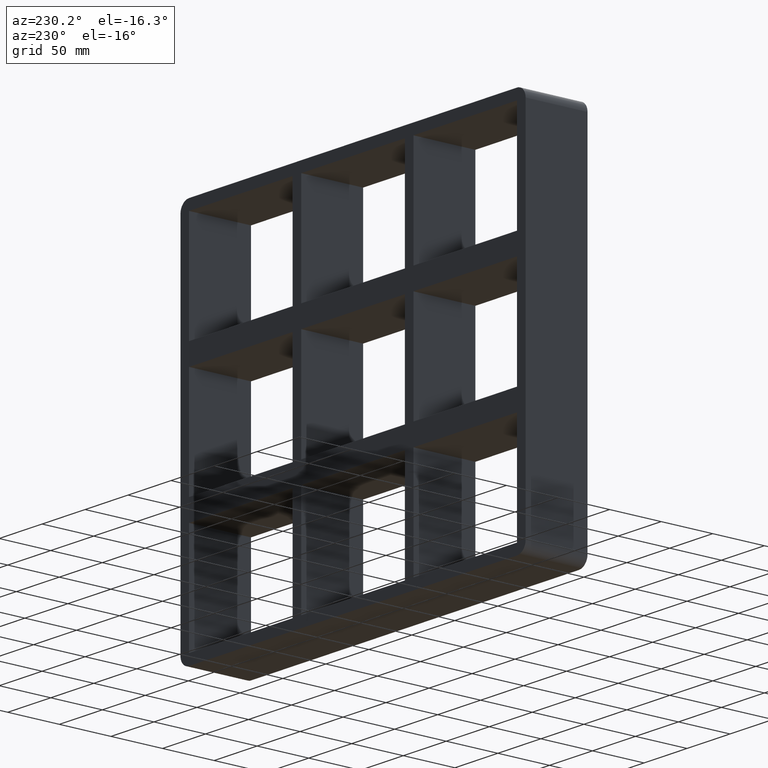
[diagram: clean part render]
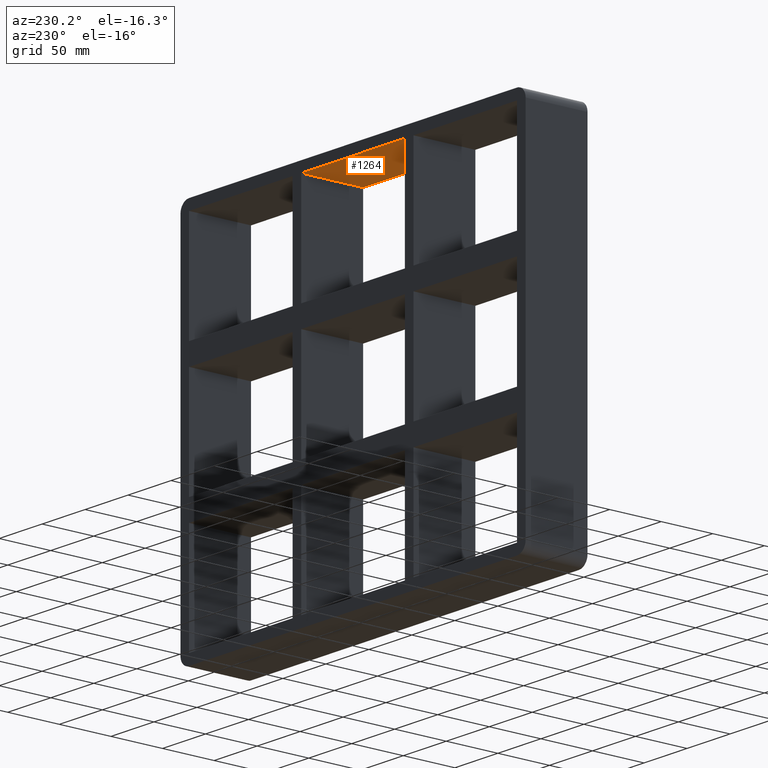
[diagram: same view with one face highlighted and labeled with its STEP entity id]
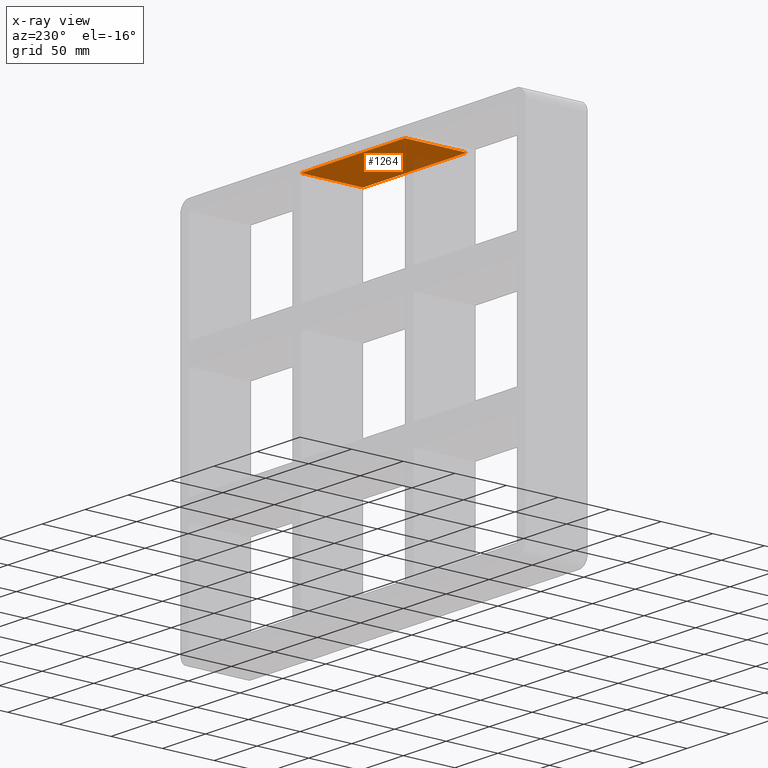
[diagram: x-ray of the same camera — body ghosted, the highlighted face saturated]
A machine part, auxiliary view. The second image highlights one B-rep face of the part: STEP entity #1264.
The next image is the same camera in x-ray: the body ghosted, the highlighted face saturated — about 9% of this face is hidden behind the body in this view.
In plain terms, the highlighted planar face has unit normal (0, 0, 1).
Its self-contained STEP definition (entity closure, byte-faithful):
#407=CARTESIAN_POINT('',(60.249999999998579,-3.0,171.50000000000003));
#408=VERTEX_POINT('',#407);
#415=CARTESIAN_POINT('',(60.249999999998579,57.0,171.50000000000003));
#416=VERTEX_POINT('',#415);
#417=CARTESIAN_POINT('',(60.249999999998593,57.000000000000007,171.50000000000003));
#418=DIRECTION('',(0.0,-1.0,0.0));
#419=VECTOR('',#418,60.000000000000007);
#420=LINE('',#417,#419);
#421=EDGE_CURVE('',#416,#408,#420,.T.);
#531=CARTESIAN_POINT('',(-60.249999999996362,57.0,171.50000000000003));
#532=VERTEX_POINT('',#531);
#539=CARTESIAN_POINT('',(-60.249999999996362,-3.0,171.50000000000003));
#540=VERTEX_POINT('',#539);
#541=CARTESIAN_POINT('',(-60.249999999996362,-3.0,171.50000000000003));
#542=DIRECTION('',(0.0,1.0,0.0));
#543=VECTOR('',#542,60.000000000000007);
#544=LINE('',#541,#543);
#545=EDGE_CURVE('',#540,#532,#544,.T.);
#661=CARTESIAN_POINT('',(60.249999999998579,57.0,171.50000000000003));
#662=DIRECTION('',(-1.0,0.0,0.0));
#663=VECTOR('',#662,120.49999999999494);
#664=LINE('',#661,#663);
#665=EDGE_CURVE('',#416,#532,#664,.T.);
#1103=CARTESIAN_POINT('',(-60.249999999996369,-3.0,171.50000000000003));
#1104=DIRECTION('',(1.0,0.0,0.0));
#1105=VECTOR('',#1104,120.49999999999494);
#1106=LINE('',#1103,#1105);
#1107=EDGE_CURVE('',#540,#408,#1106,.T.);
#1253=CARTESIAN_POINT('',(-190.75000000000006,0.0,171.50000000000003));
#1254=DIRECTION('',(0.0,0.0,1.0));
#1255=DIRECTION('',(1.0,0.0,0.0));
#1256=AXIS2_PLACEMENT_3D('',#1253,#1254,#1255);
#1257=PLANE('',#1256);
#1258=ORIENTED_EDGE('',*,*,#421,.T.);
#1259=ORIENTED_EDGE('',*,*,#1107,.F.);
#1260=ORIENTED_EDGE('',*,*,#545,.T.);
#1261=ORIENTED_EDGE('',*,*,#665,.F.);
#1262=EDGE_LOOP('',(#1258,#1259,#1260,#1261));
#1263=FACE_OUTER_BOUND('',#1262,.T.);
#1264=ADVANCED_FACE('',(#1263),#1257,.F.);